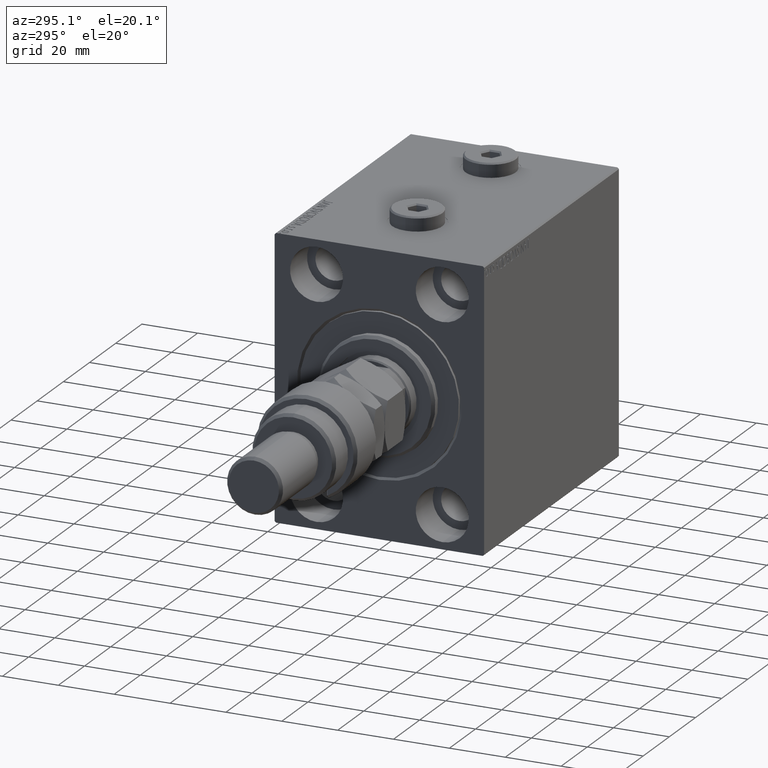
[diagram: clean part render]
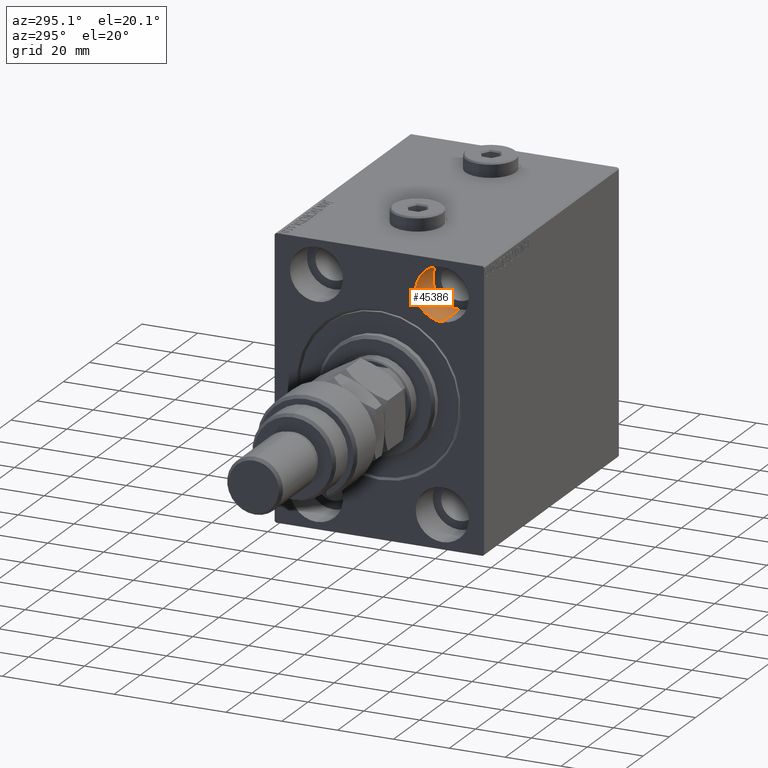
[diagram: same view with one face highlighted and labeled with its STEP entity id]
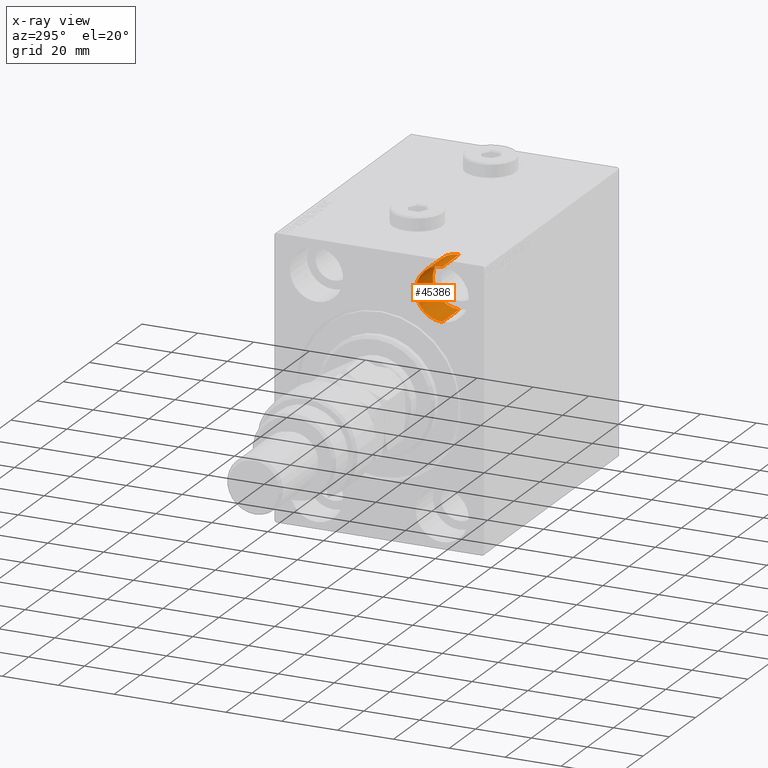
[diagram: x-ray of the same camera — body ghosted, the highlighted face saturated]
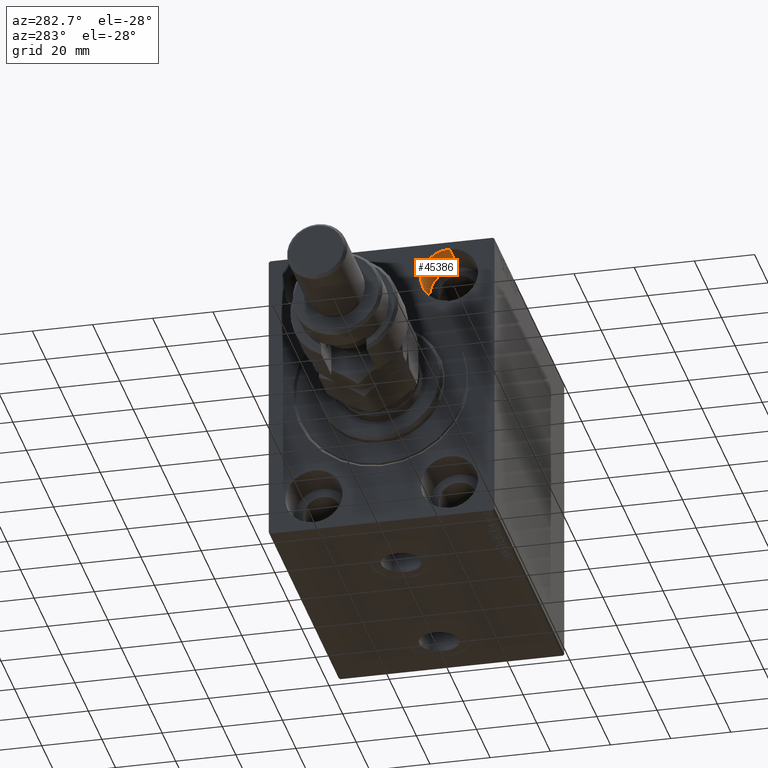
[diagram: same view with one face highlighted and labeled with its STEP entity id]
A machine part, auxiliary view. The second image highlights one B-rep face of the part: STEP entity #45386.
The next image is the same camera in x-ray: the body ghosted, the highlighted face saturated — about 0% of this face is hidden behind the body in this view.
A second angle (auxiliary view) of the same face is appended — the face is thin or edge-on in the first view.
In plain terms, the highlighted cylindrical surface (edge-blend (fillet) strip) has radius 9.5 mm, axis along (-1, -0, -0).
Its self-contained STEP definition (entity closure, byte-faithful):
#2419 = DIRECTION ( 'NONE',  ( 0.000000000000000000, 0.000000000000000000, 1.000000000000000000 ) ) ;
#5763 = VERTEX_POINT ( 'NONE', #41925 ) ;
#8835 = CIRCLE ( 'NONE', #47707, 9.500000000000001776 ) ;
#9738 = ORIENTED_EDGE ( 'NONE', *, *, #35870, .T. ) ;
#15496 = AXIS2_PLACEMENT_3D ( 'NONE', #34231, #37882, #41293 ) ;
#15718 = DIRECTION ( 'NONE',  ( 0.000000000000000000, 0.000000000000000000, 1.000000000000000000 ) ) ;
#18066 = VERTEX_POINT ( 'NONE', #19625 ) ;
#19609 = FACE_OUTER_BOUND ( 'NONE', #35563, .T. ) ;
#19625 = CARTESIAN_POINT ( 'NONE',  ( 13.00000000000000000, -22.49999999999999645, 47.49999999999999289 ) ) ;
#22438 = CARTESIAN_POINT ( 'NONE',  ( 13.00000000000000000, -22.49999999999999645, 28.49999999999998934 ) ) ;
#23025 = CYLINDRICAL_SURFACE ( 'NONE', #36790, 9.500000000000001776 ) ;
#23574 = CARTESIAN_POINT ( 'NONE',  ( 13.00000000000000000, -22.49999999999999645, 28.49999999999998934 ) ) ;
#24190 = ORIENTED_EDGE ( 'NONE', *, *, #28770, .T. ) ;
#25484 = VERTEX_POINT ( 'NONE', #46962 ) ;
#25700 = ORIENTED_EDGE ( 'NONE', *, *, #28692, .F. ) ;
#27145 = CARTESIAN_POINT ( 'NONE',  ( 13.00000000000000000, -22.49999999999999645, 37.99999999999999289 ) ) ;
#27691 = DIRECTION ( 'NONE',  ( -1.000000000000000000, -0.000000000000000000, -0.000000000000000000 ) ) ;
#28239 = DIRECTION ( 'NONE',  ( -1.000000000000000000, 0.000000000000000000, 0.000000000000000000 ) ) ;
#28692 = EDGE_CURVE ( 'NONE', #42052, #5763, #33804, .T. ) ;
#28770 = EDGE_CURVE ( 'NONE', #18066, #25484, #39591, .T. ) ;
#30319 = DIRECTION ( 'NONE',  ( -1.000000000000000000, -0.000000000000000000, -0.000000000000000000 ) ) ;
#30326 = EDGE_CURVE ( 'NONE', #18066, #42052, #8835, .T. ) ;
#30866 = DIRECTION ( 'NONE',  ( -1.000000000000000000, -0.000000000000000000, -0.000000000000000000 ) ) ;
#33804 = LINE ( 'NONE', #23574, #45305 ) ;
#34231 = CARTESIAN_POINT ( 'NONE',  ( 0.000000000000000000, -22.49999999999999645, 37.99999999999999289 ) ) ;
#35002 = CARTESIAN_POINT ( 'NONE',  ( 13.00000000000000000, -22.49999999999999645, 47.49999999999999289 ) ) ;
#35563 = EDGE_LOOP ( 'NONE', ( #25700, #40461, #24190, #9738 ) ) ;
#35870 = EDGE_CURVE ( 'NONE', #25484, #5763, #45067, .T. ) ;
#36790 = AXIS2_PLACEMENT_3D ( 'NONE', #27145, #30319, #15718 ) ;
#37882 = DIRECTION ( 'NONE',  ( -1.000000000000000000, 0.000000000000000000, 0.000000000000000000 ) ) ;
#39591 = LINE ( 'NONE', #35002, #41407 ) ;
#39902 = CARTESIAN_POINT ( 'NONE',  ( 13.00000000000000000, -22.49999999999999645, 37.99999999999999289 ) ) ;
#40461 = ORIENTED_EDGE ( 'NONE', *, *, #30326, .F. ) ;
#41293 = DIRECTION ( 'NONE',  ( 0.000000000000000000, 0.000000000000000000, 1.000000000000000000 ) ) ;
#41407 = VECTOR ( 'NONE', #27691, 1000.000000000000000 ) ;
#41925 = CARTESIAN_POINT ( 'NONE',  ( 0.000000000000000000, -22.49999999999999645, 28.49999999999998934 ) ) ;
#42052 = VERTEX_POINT ( 'NONE', #22438 ) ;
#45067 = CIRCLE ( 'NONE', #15496, 9.500000000000001776 ) ;
#45305 = VECTOR ( 'NONE', #30866, 1000.000000000000000 ) ;
#45386 = ADVANCED_FACE ( 'NONE', ( #19609 ), #23025, .F. ) ;
#46962 = CARTESIAN_POINT ( 'NONE',  ( 0.000000000000000000, -22.49999999999999645, 47.49999999999999289 ) ) ;
#47707 = AXIS2_PLACEMENT_3D ( 'NONE', #39902, #28239, #2419 ) ;